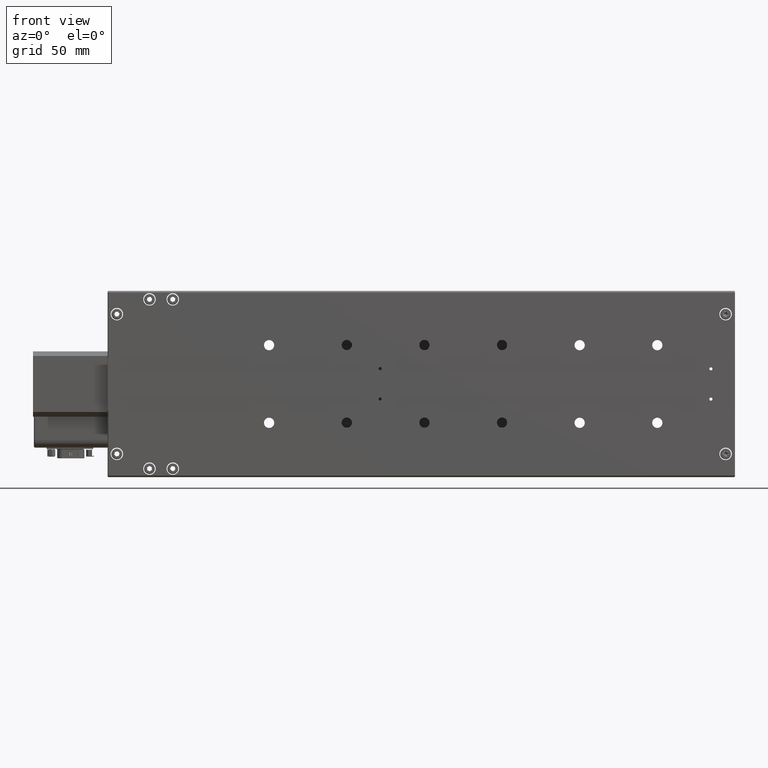
[diagram: clean part render]
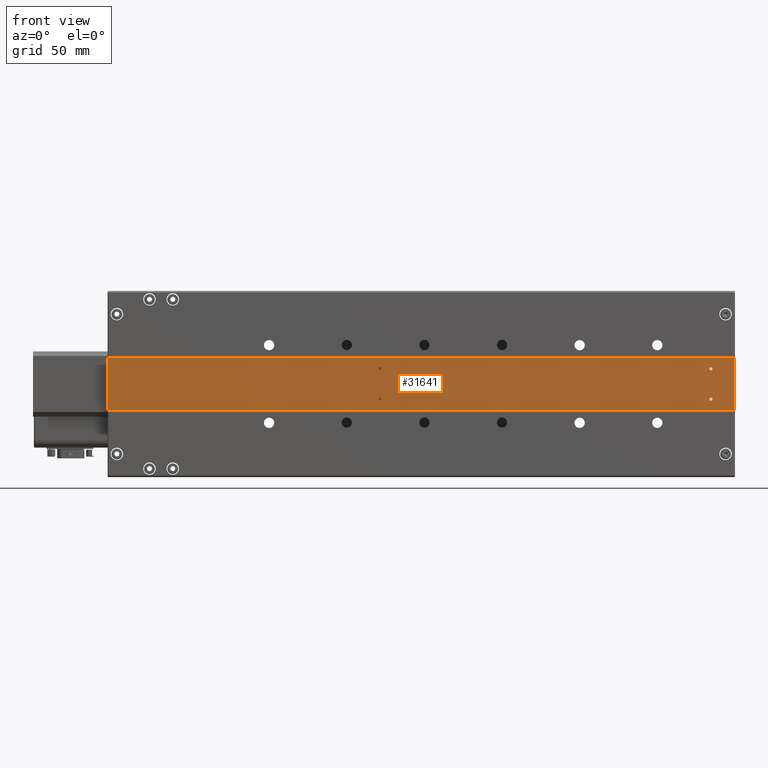
[diagram: same view with one face highlighted and labeled with its STEP entity id]
A machine part, front view. The second image highlights one B-rep face of the part: STEP entity #31641.
In plain terms, the highlighted planar face has unit normal (-0, 1, -0).
Its self-contained STEP definition (entity closure, byte-faithful):
#109 = CIRCLE ( 'NONE', #40244, 1.000000000000000900 ) ;
#594 = EDGE_CURVE ( 'NONE', #31851, #39684, #778, .T. ) ;
#596 = CARTESIAN_POINT ( 'NONE',  ( 67.59054721859215000, 0.3000000000017138400, -217.2444050297533200 ) ) ;
#778 = CIRCLE ( 'NONE', #39712, 1.000000000000000900 ) ;
#979 = EDGE_CURVE ( 'NONE', #28095, #17320, #25659, .T. ) ;
#1636 = FACE_BOUND ( 'NONE', #16603, .T. ) ;
#1902 = AXIS2_PLACEMENT_3D ( 'NONE', #34039, #34874, #34451 ) ;
#2157 = VERTEX_POINT ( 'NONE', #14014 ) ;
#2211 = CARTESIAN_POINT ( 'NONE',  ( 296.8905472185915100, 0.3000000000017225000, -147.4944050297512500 ) ) ;
#2472 = CARTESIAN_POINT ( 'NONE',  ( 297.0905472185918400, 0.3000000000017172800, -190.4944050297512500 ) ) ;
#2746 = DIRECTION ( 'NONE',  ( -1.000000000000000000, -1.121737258902228800E-030, -9.159679833264681700E-015 ) ) ;
#3858 = EDGE_CURVE ( 'NONE', #2157, #9182, #41860, .T. ) ;
#3937 = CARTESIAN_POINT ( 'NONE',  ( -106.9094527814078200, 0.3000000000017138400, -224.4944050297549400 ) ) ;
#4437 = ORIENTED_EDGE ( 'NONE', *, *, #594, .F. ) ;
#4514 = CARTESIAN_POINT ( 'NONE',  ( 281.5905472185919500, 0.3000000000017172800, -197.7444050297513900 ) ) ;
#4797 = DIRECTION ( 'NONE',  ( -1.000000000000000000, 0.0000000000000000000, -2.775557561562888800E-014 ) ) ;
#5460 = DIRECTION ( 'NONE',  ( -1.000000000000000000, 0.0000000000000000000, -2.775557561562888800E-014 ) ) ;
#5786 = CARTESIAN_POINT ( 'NONE',  ( 282.5905472185919500, 0.3000000000017172800, -197.7444050297513900 ) ) ;
#5922 = CARTESIAN_POINT ( 'NONE',  ( 68.59054721859215000, 0.3000000000017138400, -217.2444050297533200 ) ) ;
#5925 = AXIS2_PLACEMENT_3D ( 'NONE', #21749, #15192, #38310 ) ;
#6189 = LINE ( 'NONE', #39263, #13488 ) ;
#6744 = ORIENTED_EDGE ( 'NONE', *, *, #39116, .F. ) ;
#7572 = EDGE_CURVE ( 'NONE', #17320, #2157, #29782, .T. ) ;
#7701 = CARTESIAN_POINT ( 'NONE',  ( -106.7094527814078000, 0.3000000000017138400, -224.4944050297549400 ) ) ;
#8365 = CARTESIAN_POINT ( 'NONE',  ( 68.59054721859197900, 0.3000000000017172800, -197.7444050297533200 ) ) ;
#8449 = ORIENTED_EDGE ( 'NONE', *, *, #31530, .F. ) ;
#8532 = VERTEX_POINT ( 'NONE', #19214 ) ;
#9182 = VERTEX_POINT ( 'NONE', #19888 ) ;
#11175 = DIRECTION ( 'NONE',  ( 9.159679833264681700E-015, -1.224646799147351500E-016, -1.000000000000000000 ) ) ;
#11327 = ORIENTED_EDGE ( 'NONE', *, *, #7572, .T. ) ;
#11957 = VECTOR ( 'NONE', #38085, 1000.000000000000000 ) ;
#12023 = EDGE_LOOP ( 'NONE', ( #8449, #26800 ) ) ;
#12534 = FACE_BOUND ( 'NONE', #13286, .T. ) ;
#12762 = DIRECTION ( 'NONE',  ( -1.488879618345118100E-044, 1.000000000000000000, -1.224646799147351500E-016 ) ) ;
#13286 = EDGE_LOOP ( 'NONE', ( #4437, #26624 ) ) ;
#13488 = VECTOR ( 'NONE', #42547, 1000.000000000000000 ) ;
#13987 = VERTEX_POINT ( 'NONE', #41293 ) ;
#14014 = CARTESIAN_POINT ( 'NONE',  ( 296.8905472185920800, 0.3000000000017138400, -224.4944050297512800 ) ) ;
#14880 = CIRCLE ( 'NONE', #1902, 1.000000000000000900 ) ;
#15192 = DIRECTION ( 'NONE',  ( 5.605193857299268300E-045, -1.000000000000000000, 1.224646799147351500E-016 ) ) ;
#15653 = AXIS2_PLACEMENT_3D ( 'NONE', #5922, #35747, #15797 ) ;
#15787 = VECTOR ( 'NONE', #23948, 1000.000000000000000 ) ;
#15797 = DIRECTION ( 'NONE',  ( -1.000000000000000000, 0.0000000000000000000, -2.775557561562888800E-014 ) ) ;
#16426 = EDGE_CURVE ( 'NONE', #39684, #31851, #32741, .T. ) ;
#16603 = EDGE_LOOP ( 'NONE', ( #6744, #22793 ) ) ;
#16695 = DIRECTION ( 'NONE',  ( -1.000000000000000000, 0.0000000000000000000, -2.775557561562888800E-014 ) ) ;
#16856 = VECTOR ( 'NONE', #11175, 1000.000000000000000 ) ;
#17320 = VERTEX_POINT ( 'NONE', #7701 ) ;
#17999 = CARTESIAN_POINT ( 'NONE',  ( -106.7094527814085300, 0.3000000000017225000, -147.4944050297549400 ) ) ;
#18370 = DIRECTION ( 'NONE',  ( 5.605193857299268300E-045, -1.000000000000000000, 1.224646799147351500E-016 ) ) ;
#18750 = CIRCLE ( 'NONE', #22352, 1.000000000000000900 ) ;
#19214 = CARTESIAN_POINT ( 'NONE',  ( 282.5905472185921200, 0.3000000000017138400, -217.2444050297513900 ) ) ;
#19888 = CARTESIAN_POINT ( 'NONE',  ( 296.8905472185917300, 0.3000000000017172800, -190.4944050297512500 ) ) ;
#21505 = ORIENTED_EDGE ( 'NONE', *, *, #979, .T. ) ;
#21749 = CARTESIAN_POINT ( 'NONE',  ( 281.5905472185921200, 0.3000000000017138400, -217.2444050297513900 ) ) ;
#22347 = VERTEX_POINT ( 'NONE', #35813 ) ;
#22352 = AXIS2_PLACEMENT_3D ( 'NONE', #28411, #28545, #31884 ) ;
#22634 = PLANE ( 'NONE',  #34795 ) ;
#22793 = ORIENTED_EDGE ( 'NONE', *, *, #31714, .F. ) ;
#23355 = AXIS2_PLACEMENT_3D ( 'NONE', #42597, #36305, #23461 ) ;
#23461 = DIRECTION ( 'NONE',  ( -1.000000000000000000, 0.0000000000000000000, -2.775557561562888800E-014 ) ) ;
#23948 = DIRECTION ( 'NONE',  ( 1.000000000000000000, 1.121737258902228800E-030, 9.159679833264681700E-015 ) ) ;
#24299 = EDGE_CURVE ( 'NONE', #9182, #28095, #6189, .T. ) ;
#24468 = FACE_OUTER_BOUND ( 'NONE', #37470, .T. ) ;
#24497 = ORIENTED_EDGE ( 'NONE', *, *, #37171, .F. ) ;
#25659 = LINE ( 'NONE', #17999, #16856 ) ;
#25867 = CARTESIAN_POINT ( 'NONE',  ( 67.59054721859197900, 0.3000000000017172800, -197.7444050297533200 ) ) ;
#26223 = VERTEX_POINT ( 'NONE', #25867 ) ;
#26544 = CARTESIAN_POINT ( 'NONE',  ( 68.59054721859215000, 0.3000000000017138400, -217.2444050297533200 ) ) ;
#26624 = ORIENTED_EDGE ( 'NONE', *, *, #16426, .F. ) ;
#26800 = ORIENTED_EDGE ( 'NONE', *, *, #30778, .F. ) ;
#27011 = FACE_BOUND ( 'NONE', #12023, .T. ) ;
#27277 = ORIENTED_EDGE ( 'NONE', *, *, #31994, .F. ) ;
#28095 = VERTEX_POINT ( 'NONE', #37865 ) ;
#28411 = CARTESIAN_POINT ( 'NONE',  ( 68.59054721859197900, 0.3000000000017172800, -197.7444050297533200 ) ) ;
#28545 = DIRECTION ( 'NONE',  ( 5.605193857299268300E-045, -1.000000000000000000, 1.224646799147351500E-016 ) ) ;
#28864 = VERTEX_POINT ( 'NONE', #42789 ) ;
#29782 = LINE ( 'NONE', #3937, #15787 ) ;
#30095 = VERTEX_POINT ( 'NONE', #596 ) ;
#30778 = EDGE_CURVE ( 'NONE', #22347, #26223, #109, .T. ) ;
#31530 = EDGE_CURVE ( 'NONE', #26223, #22347, #18750, .T. ) ;
#31641 = ADVANCED_FACE ( 'NONE', ( #27011, #12534, #24468, #35785, #1636 ), #22634, .F. ) ;
#31659 = AXIS2_PLACEMENT_3D ( 'NONE', #26544, #36458, #16695 ) ;
#31714 = EDGE_CURVE ( 'NONE', #28864, #30095, #36322, .T. ) ;
#31851 = VERTEX_POINT ( 'NONE', #36307 ) ;
#31884 = DIRECTION ( 'NONE',  ( -1.000000000000000000, 0.0000000000000000000, -2.775557561562888800E-014 ) ) ;
#31994 = EDGE_CURVE ( 'NONE', #8532, #13987, #32691, .T. ) ;
#32691 = CIRCLE ( 'NONE', #5925, 1.000000000000000900 ) ;
#32741 = CIRCLE ( 'NONE', #23355, 1.000000000000000900 ) ;
#34039 = CARTESIAN_POINT ( 'NONE',  ( 281.5905472185921200, 0.3000000000017138400, -217.2444050297513900 ) ) ;
#34452 = ORIENTED_EDGE ( 'NONE', *, *, #24299, .T. ) ;
#34451 = DIRECTION ( 'NONE',  ( -1.000000000000000000, 0.0000000000000000000, -2.775557561562888800E-014 ) ) ;
#34795 = AXIS2_PLACEMENT_3D ( 'NONE', #2472, #12762, #2746 ) ;
#34874 = DIRECTION ( 'NONE',  ( 5.605193857299268300E-045, -1.000000000000000000, 1.224646799147351500E-016 ) ) ;
#35159 = EDGE_LOOP ( 'NONE', ( #24497, #27277 ) ) ;
#35747 = DIRECTION ( 'NONE',  ( 5.605193857299268300E-045, -1.000000000000000000, 1.224646799147351500E-016 ) ) ;
#35785 = FACE_BOUND ( 'NONE', #35159, .T. ) ;
#35813 = CARTESIAN_POINT ( 'NONE',  ( 69.59054721859197900, 0.3000000000017172800, -197.7444050297533200 ) ) ;
#36305 = DIRECTION ( 'NONE',  ( 5.605193857299268300E-045, -1.000000000000000000, 1.224646799147351500E-016 ) ) ;
#36307 = CARTESIAN_POINT ( 'NONE',  ( 280.5905472185919500, 0.3000000000017172800, -197.7444050297513900 ) ) ;
#36322 = CIRCLE ( 'NONE', #15653, 1.000000000000000900 ) ;
#36458 = DIRECTION ( 'NONE',  ( 5.605193857299268300E-045, -1.000000000000000000, 1.224646799147351500E-016 ) ) ;
#37171 = EDGE_CURVE ( 'NONE', #13987, #8532, #14880, .T. ) ;
#37470 = EDGE_LOOP ( 'NONE', ( #11327, #40027, #34452, #21505 ) ) ;
#37865 = CARTESIAN_POINT ( 'NONE',  ( -106.7094527814081500, 0.3000000000017172800, -190.4944050297549400 ) ) ;
#38085 = DIRECTION ( 'NONE',  ( -9.159679833264681700E-015, 1.224646799147351500E-016, 1.000000000000000000 ) ) ;
#38310 = DIRECTION ( 'NONE',  ( -1.000000000000000000, 0.0000000000000000000, -2.775557561562888800E-014 ) ) ;
#38492 = CIRCLE ( 'NONE', #31659, 1.000000000000000900 ) ;
#39116 = EDGE_CURVE ( 'NONE', #30095, #28864, #38492, .T. ) ;
#39263 = CARTESIAN_POINT ( 'NONE',  ( -106.9094527814081500, 0.3000000000017172800, -190.4944050297549400 ) ) ;
#39684 = VERTEX_POINT ( 'NONE', #5786 ) ;
#39712 = AXIS2_PLACEMENT_3D ( 'NONE', #4514, #40791, #4797 ) ;
#40027 = ORIENTED_EDGE ( 'NONE', *, *, #3858, .T. ) ;
#40244 = AXIS2_PLACEMENT_3D ( 'NONE', #8365, #18370, #5460 ) ;
#40791 = DIRECTION ( 'NONE',  ( 5.605193857299268300E-045, -1.000000000000000000, 1.224646799147351500E-016 ) ) ;
#41293 = CARTESIAN_POINT ( 'NONE',  ( 280.5905472185921200, 0.3000000000017138400, -217.2444050297513900 ) ) ;
#41860 = LINE ( 'NONE', #2211, #11957 ) ;
#42547 = DIRECTION ( 'NONE',  ( -1.000000000000000000, -1.121737258902228800E-030, -9.159679833264681700E-015 ) ) ;
#42597 = CARTESIAN_POINT ( 'NONE',  ( 281.5905472185919500, 0.3000000000017172800, -197.7444050297513900 ) ) ;
#42789 = CARTESIAN_POINT ( 'NONE',  ( 69.59054721859215000, 0.3000000000017138400, -217.2444050297533200 ) ) ;